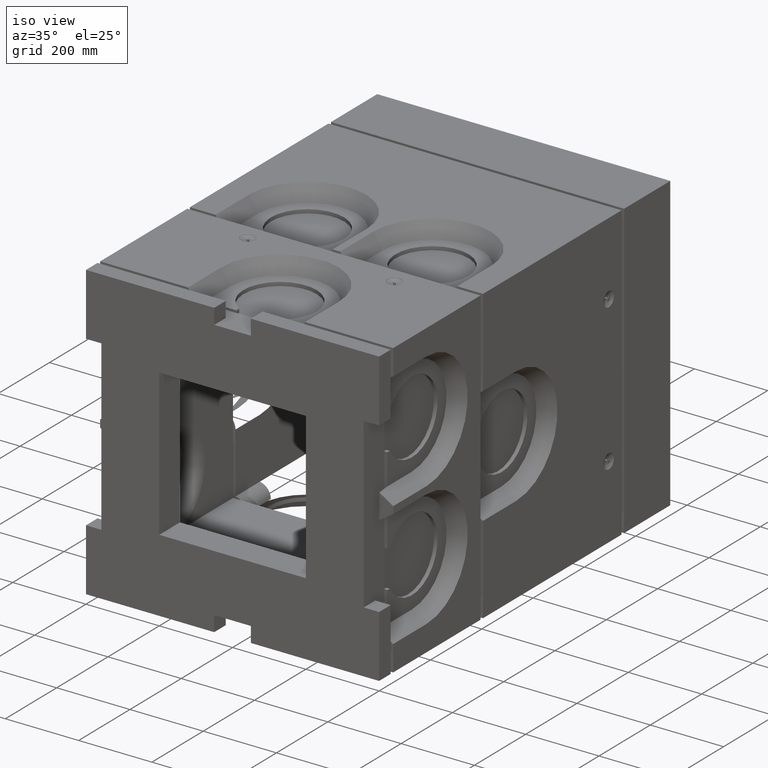
[diagram: clean part render]
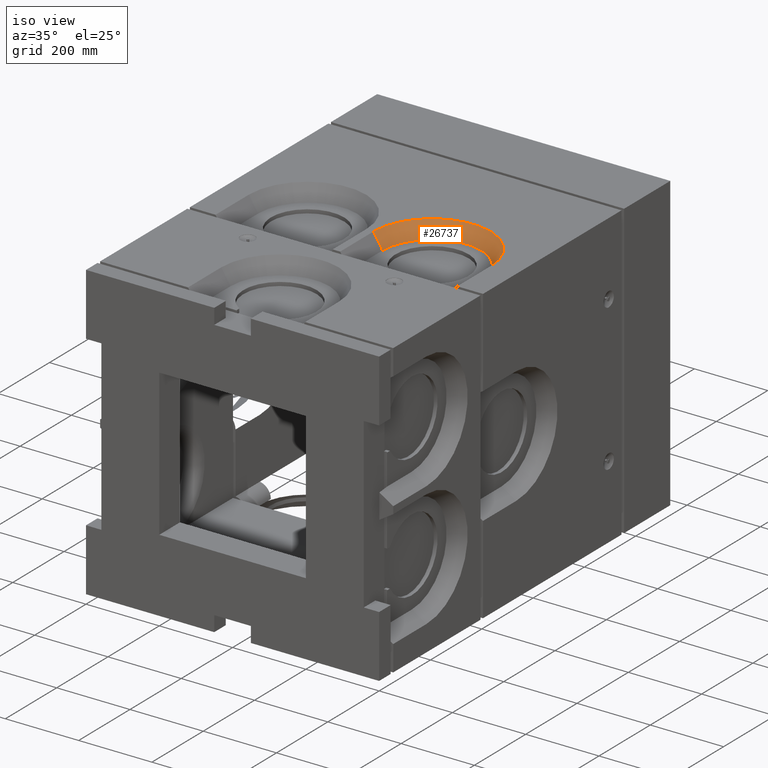
[diagram: same view with one face highlighted and labeled with its STEP entity id]
A machine part, iso view. The second image highlights one B-rep face of the part: STEP entity #26737.
In plain terms, the highlighted conical surface has half-angle 32 deg.
Its self-contained STEP definition (entity closure, byte-faithful):
#1631 = CARTESIAN_POINT ( 'NONE',  ( 330.0000000000000000, 534.9999999999998863, 399.9999999999999432 ) ) ;
#1834 = FACE_OUTER_BOUND ( 'NONE', #14077, .T. ) ;
#2309 = EDGE_CURVE ( 'NONE', #8583, #23841, #18343, .T. ) ;
#2701 = CONICAL_SURFACE ( 'NONE', #4371, 160.0000000000000000, 0.5585053606381866764 ) ;
#3054 = LINE ( 'NONE', #12997, #23356 ) ;
#3691 = ORIENTED_EDGE ( 'NONE', *, *, #10417, .F. ) ;
#3860 = DIRECTION ( 'NONE',  ( -1.000000000000000000, 0.000000000000000000, 0.000000000000000000 ) ) ;
#4371 = AXIS2_PLACEMENT_3D ( 'NONE', #16271, #20715, #3860 ) ;
#4376 = AXIS2_PLACEMENT_3D ( 'NONE', #11657, #20239, #26728 ) ;
#4459 = CARTESIAN_POINT ( 'NONE',  ( 9.999999999999953815, 534.9999999999998863, 399.9999999999999432 ) ) ;
#6207 = CARTESIAN_POINT ( 'NONE',  ( 34.99477407637313320, 534.9999999999998863, 360.0000000000000000 ) ) ;
#7364 = EDGE_CURVE ( 'NONE', #23841, #25672, #3054, .T. ) ;
#8583 = VERTEX_POINT ( 'NONE', #6207 ) ;
#8688 = DIRECTION ( 'NONE',  ( 0.5299192642332060110, -0.000000000000000000, 0.8480480961564252906 ) ) ;
#8828 = EDGE_CURVE ( 'NONE', #8583, #17548, #17205, .T. ) ;
#9774 = DIRECTION ( 'NONE',  ( -0.000000000000000000, -0.000000000000000000, -1.000000000000000000 ) ) ;
#10417 = EDGE_CURVE ( 'NONE', #17548, #25672, #18724, .T. ) ;
#11592 = ORIENTED_EDGE ( 'NONE', *, *, #2309, .T. ) ;
#11657 = CARTESIAN_POINT ( 'NONE',  ( 169.9999999999999716, 534.9999999999998863, 399.9999999999999432 ) ) ;
#12178 = ORIENTED_EDGE ( 'NONE', *, *, #8828, .F. ) ;
#12997 = CARTESIAN_POINT ( 'NONE',  ( 330.0000000000000000, 534.9999999999998863, 399.9999999999999432 ) ) ;
#14077 = EDGE_LOOP ( 'NONE', ( #3691, #12178, #11592, #16919 ) ) ;
#16004 = CARTESIAN_POINT ( 'NONE',  ( 305.0052259236268242, 534.9999999999998863, 360.0000000000000000 ) ) ;
#16271 = CARTESIAN_POINT ( 'NONE',  ( 169.9999999999999716, 534.9999999999998863, 399.9999999999999432 ) ) ;
#16524 = VECTOR ( 'NONE', #25164, 1000.000000000000114 ) ;
#16919 = ORIENTED_EDGE ( 'NONE', *, *, #7364, .T. ) ;
#17205 = LINE ( 'NONE', #20676, #16524 ) ;
#17548 = VERTEX_POINT ( 'NONE', #4459 ) ;
#18343 = CIRCLE ( 'NONE', #21872, 135.0052259236268526 ) ;
#18724 = CIRCLE ( 'NONE', #4376, 160.0000000000000000 ) ;
#20239 = DIRECTION ( 'NONE',  ( -0.000000000000000000, -0.000000000000000000, -1.000000000000000000 ) ) ;
#20676 = CARTESIAN_POINT ( 'NONE',  ( 9.999999999999953815, 534.9999999999998863, 399.9999999999999432 ) ) ;
#20715 = DIRECTION ( 'NONE',  ( -0.000000000000000000, -0.000000000000000000, 1.000000000000000000 ) ) ;
#21872 = AXIS2_PLACEMENT_3D ( 'NONE', #22757, #9774, #24927 ) ;
#22757 = CARTESIAN_POINT ( 'NONE',  ( 169.9999999999999716, 534.9999999999998863, 360.0000000000000000 ) ) ;
#23356 = VECTOR ( 'NONE', #8688, 1000.000000000000114 ) ;
#23841 = VERTEX_POINT ( 'NONE', #16004 ) ;
#24927 = DIRECTION ( 'NONE',  ( 1.000000000000000000, 0.000000000000000000, 0.000000000000000000 ) ) ;
#25164 = DIRECTION ( 'NONE',  ( -0.5299192642332060110, -0.000000000000000000, 0.8480480961564252906 ) ) ;
#25672 = VERTEX_POINT ( 'NONE', #1631 ) ;
#26728 = DIRECTION ( 'NONE',  ( -1.000000000000000000, 0.000000000000000000, 0.000000000000000000 ) ) ;
#26737 = ADVANCED_FACE ( 'NONE', ( #1834 ), #2701, .F. ) ;